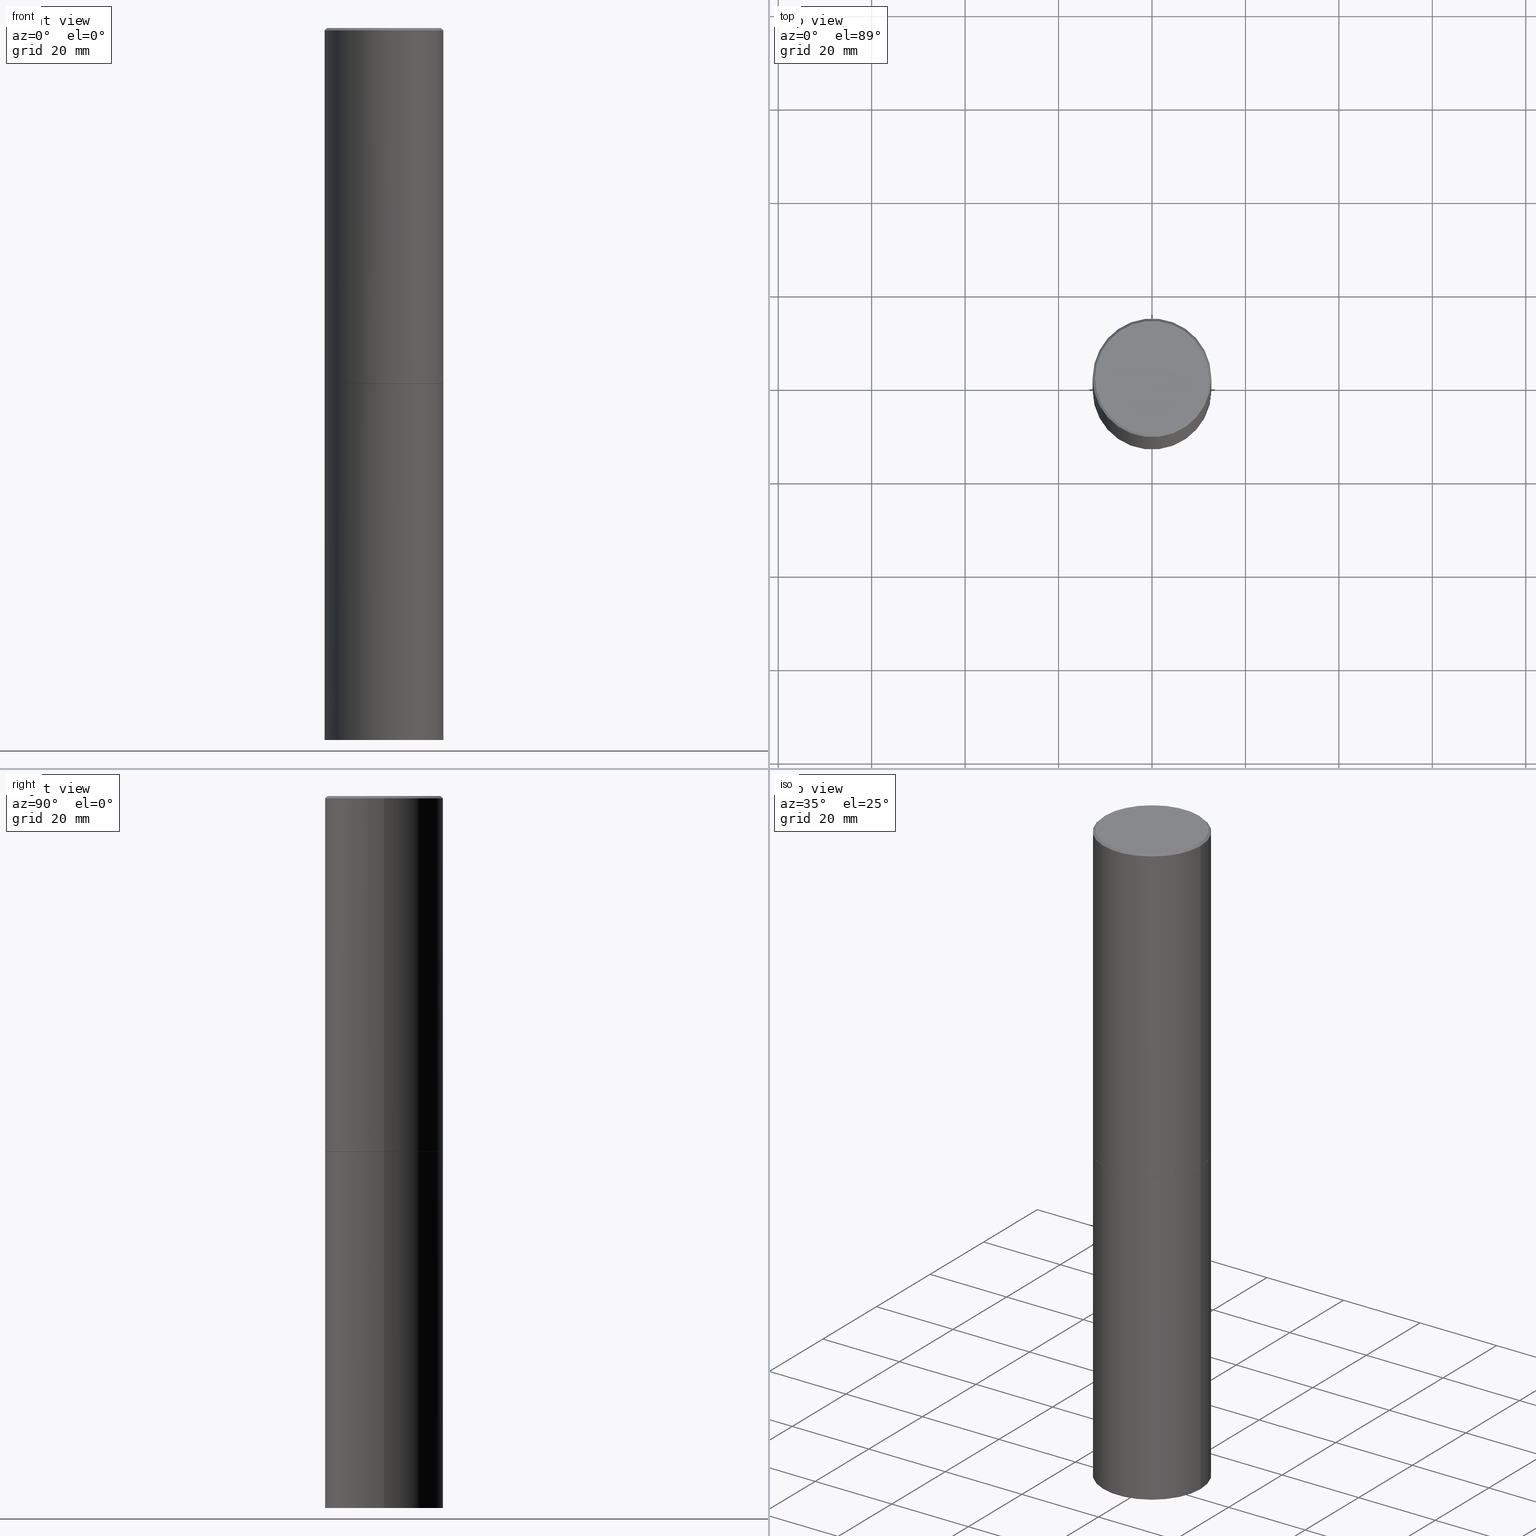
[diagram: canonical four-view strip — front | top / right | iso, engineering-drawing reading convention]
A machine part, canonical four-view strip (front | top / right | iso — engineering-drawing reading convention). The complete STEP part file that produces these views, byte-faithful:
ISO-10303-21;
HEADER;
FILE_DESCRIPTION (( 'STEP AP203' ),
    '1' );
FILE_NAME ('37697.STEP',
    '2024-02-27T22:48:44',
    ( '' ),
    ( '' ),
    'SwSTEP 2.0',
    'SolidWorks 2023',
    '' );
FILE_SCHEMA (( 'CONFIG_CONTROL_DESIGN' ));
ENDSEC;

DATA;
#1 = DESIGN_CONTEXT ( 'detailed design', #206, 'design' ) ;
#2 = CC_DESIGN_PERSON_AND_ORGANIZATION_ASSIGNMENT ( #282, #12, ( #76 ) ) ;
#3 = ORIENTED_EDGE ( 'NONE', *, *, #358, .F. ) ;
#4 = VERTEX_POINT ( 'NONE', #69 ) ;
#5 = ORIENTED_EDGE ( 'NONE', *, *, #90, .T. ) ;
#6 = AXIS2_PLACEMENT_3D ( 'NONE', #21, #345, #122 ) ;
#7 = VERTEX_POINT ( 'NONE', #151 ) ;
#8 = CC_DESIGN_DATE_AND_TIME_ASSIGNMENT ( #18, #131, ( #296 ) ) ;
#9 = VERTEX_POINT ( 'NONE', #183 ) ;
#10 = PLANE ( 'NONE',  #231 ) ;
#11 = DIRECTION ( 'NONE',  ( 2.438088387897960049E-29, -3.491481338843145188E-15, -1.000000000000000000 ) ) ;
#12 = PERSON_AND_ORGANIZATION_ROLE ( 'design_owner' ) ;
#13 = SHAPE_DEFINITION_REPRESENTATION ( #325, #197 ) ;
#14 = FACE_OUTER_BOUND ( 'NONE', #248, .T. ) ;
#15 = ORIENTED_EDGE ( 'NONE', *, *, #211, .T. ) ;
#16 = APPROVAL_STATUS ( 'not_yet_approved' ) ;
#17 = ORIENTED_EDGE ( 'NONE', *, *, #358, .T. ) ;
#18 = DATE_AND_TIME ( #284, #333 ) ;
#19 = CARTESIAN_POINT ( 'NONE',  ( 1.467281283711081958E-28, -2.094888803305887271E-14, -6.000000000000000888 ) ) ;
#20 = VECTOR ( 'NONE', #255, 39.37007874015748143 ) ;
#21 = CARTESIAN_POINT ( 'NONE',  ( 7.336406418555409790E-29, -1.047444401652943635E-14, -3.000000000000000444 ) ) ;
#22 = EDGE_CURVE ( 'NONE', #9, #297, #30, .T. ) ;
#23 = MANIFOLD_SOLID_BREP ( 'Body-Move/Copy2[1]', #87 ) ;
#24 = CIRCLE ( 'NONE', #271, 0.4999999999999996114 ) ;
#25 = EDGE_CURVE ( 'NONE', #100, #238, #352, .T. ) ;
#26 = ORIENTED_EDGE ( 'NONE', *, *, #22, .T. ) ;
#27 = DIRECTION ( 'NONE',  ( 2.445468806185136597E-29, -3.491481338843145583E-15, -1.000000000000000000 ) ) ;
#28 = FACE_OUTER_BOUND ( 'NONE', #221, .T. ) ;
#29 = ORIENTED_EDGE ( 'NONE', *, *, #194, .T. ) ;
#30 = CIRCLE ( 'NONE', #134, 0.4799999999999995937 ) ;
#31 = LOCAL_TIME ( 17, 48, 44.00000000000000000, #256 ) ;
#32 = ORIENTED_EDGE ( 'NONE', *, *, #59, .F. ) ;
#33 = ORIENTED_EDGE ( 'NONE', *, *, #262, .F. ) ;
#34 = PLANE ( 'NONE',  #61 ) ;
#35 = ADVANCED_FACE ( 'NONE', ( #155 ), #316, .T. ) ;
#36 = LINE ( 'NONE', #267, #20 ) ;
#37 = CIRCLE ( 'NONE', #54, 0.5000000000000000000 ) ;
#38 = FACE_OUTER_BOUND ( 'NONE', #187, .T. ) ;
#39 = PRODUCT_DEFINITION ( 'UNKNOWN', '', #348, #1 ) ;
#40 = DIRECTION ( 'NONE',  ( -2.445468806185136597E-29, 3.491481338843145583E-15, 1.000000000000000000 ) ) ;
#41 = DIRECTION ( 'NONE',  ( -2.445468806185136597E-29, 3.491481338843145583E-15, 1.000000000000000000 ) ) ;
#42 = ORIENTED_EDGE ( 'NONE', *, *, #326, .F. ) ;
#43 = APPROVAL_ROLE ( '' ) ;
#44 = PERSON_AND_ORGANIZATION_ROLE ( 'classification_officer' ) ;
#45 = PRODUCT_RELATED_PRODUCT_CATEGORY ( 'detail', '', ( #76 ) ) ;
#46 = CARTESIAN_POINT ( 'NONE',  ( 0.4989999999999999991, -1.395894239269488369E-14, -3.000000000000000444 ) ) ;
#47 = EDGE_CURVE ( 'NONE', #4, #294, #239, .T. ) ;
#48 = VECTOR ( 'NONE', #343, 39.37007874015748143 ) ;
#49 = CARTESIAN_POINT ( 'NONE',  ( 0.5000000000000000000, -3.491481338843133355E-15, 2.438088387897967896E-29 ) ) ;
#50 = DATE_AND_TIME ( #314, #167 ) ;
#51 = SECURITY_CLASSIFICATION_LEVEL ( 'unclassified' ) ;
#52 = CARTESIAN_POINT ( 'NONE',  ( 0.000000000000000000, 0.000000000000000000, 0.000000000000000000 ) ) ;
#53 = AXIS2_PLACEMENT_3D ( 'NONE', #253, #27, #344 ) ;
#54 = AXIS2_PLACEMENT_3D ( 'NONE', #88, #317, #287 ) ;
#55 = PERSON_AND_ORGANIZATION ( #92, #223 ) ;
#56 = CARTESIAN_POINT ( 'NONE',  ( -0.4989999999999999991, -6.923537310738314819E-15, -3.000000000000000444 ) ) ;
#57 = FACE_OUTER_BOUND ( 'NONE', #141, .T. ) ;
#58 = EDGE_CURVE ( 'NONE', #265, #238, #114, .T. ) ;
#59 = EDGE_CURVE ( 'NONE', #172, #265, #36, .T. ) ;
#60 = ORIENTED_EDGE ( 'NONE', *, *, #63, .T. ) ;
#61 = AXIS2_PLACEMENT_3D ( 'NONE', #288, #144, #110 ) ;
#62 = EDGE_LOOP ( 'NONE', ( #95, #26 ) ) ;
#63 = EDGE_CURVE ( 'NONE', #294, #124, #83, .T. ) ;
#64 = ORIENTED_EDGE ( 'NONE', *, *, #127, .T. ) ;
#65 = CC_DESIGN_APPROVAL ( #308, ( #39 ) ) ;
#66 =( NAMED_UNIT ( * ) PLANE_ANGLE_UNIT ( ) SI_UNIT ( $, .RADIAN. ) );
#67 = PLANE ( 'NONE',  #108 ) ;
#68 = CALENDAR_DATE ( 2024, 27, 2 ) ;
#69 = CARTESIAN_POINT ( 'NONE',  ( 0.5000000000000000000, -2.444036937190200606E-14, -6.000000000000000888 ) ) ;
#70 = EDGE_LOOP ( 'NONE', ( #175, #241, #117, #237 ) ) ;
#71 = DIRECTION ( 'NONE',  ( -2.445468806185136597E-29, 3.491481338843145583E-15, 1.000000000000000000 ) ) ;
#72 = CIRCLE ( 'NONE', #222, 0.5000000000000000000 ) ;
#73 = DIRECTION ( 'NONE',  ( 1.000000000000000000, -6.982962677686266711E-15, 4.876176775795935793E-29 ) ) ;
#74 = AXIS2_PLACEMENT_3D ( 'NONE', #188, #40, #99 ) ;
#75 = APPROVAL_PERSON_ORGANIZATION ( #331, #308, #357 ) ;
#76 = PRODUCT ( '37697', '37697', '', ( #278 ) ) ;
#77 =( LENGTH_UNIT ( ) NAMED_UNIT ( * ) SI_UNIT ( $, .METRE. ) );
#78 = PERSON_AND_ORGANIZATION ( #92, #223 ) ;
#79 = CC_DESIGN_PERSON_AND_ORGANIZATION_ASSIGNMENT ( #163, #44, ( #296 ) ) ;
#80 = DIRECTION ( 'NONE',  ( -0.7071067811865452413, 2.468850131082233000E-15, -0.7071067811865497932 ) ) ;
#81 = APPROVAL_DATE_TIME ( #86, #308 ) ;
#82 = APPROVAL_PERSON_ORGANIZATION ( #153, #145, #43 ) ;
#83 = LINE ( 'NONE', #341, #48 ) ;
#84 = DIRECTION ( 'NONE',  ( -2.445468806185136597E-29, 3.491481338843145583E-15, 1.000000000000000000 ) ) ;
#85 = CARTESIAN_POINT ( 'NONE',  ( 0.000000000000000000, 0.000000000000000000, 0.000000000000000000 ) ) ;
#86 = DATE_AND_TIME ( #257, #31 ) ;
#87 = CLOSED_SHELL ( 'NONE', ( #251, #289, #340, #260 ) ) ;
#88 = CARTESIAN_POINT ( 'NONE',  ( 7.333960949749226429E-29, -1.047095253519059492E-14, -2.999000000000000554 ) ) ;
#89 = CARTESIAN_POINT ( 'NONE',  ( -3.131554243005659264E-46, 4.471029511141341874E-32, 1.280553747030123384E-17 ) ) ;
#90 = EDGE_CURVE ( 'NONE', #320, #7, #24, .T. ) ;
#91 = DIRECTION ( 'NONE',  ( 1.000000000000000000, -6.982962677686266711E-15, 0.000000000000000000 ) ) ;
#92 = PERSON ( 'UNSPECIFIED', 'UNSPECIFIED', 'UNSPECIFIED', ('UNSPECIFIED'), ('UNSPECIFIED'), ('UNSPECIFIED') ) ;
#93 = DIRECTION ( 'NONE',  ( 2.445468806185136597E-29, -3.491481338843145583E-15, -1.000000000000000000 ) ) ;
#94 = ADVANCED_FACE ( 'NONE', ( #363 ), #34, .F. ) ;
#95 = ORIENTED_EDGE ( 'NONE', *, *, #228, .T. ) ;
#96 = DIRECTION ( 'NONE',  ( 1.000000000000000000, -6.982962677686265133E-15, 0.000000000000000000 ) ) ;
#97 = CONICAL_SURFACE ( 'NONE', #53, 0.4999999999999996114, 0.7853981633974450594 ) ;
#98 = ORIENTED_EDGE ( 'NONE', *, *, #136, .T. ) ;
#99 = DIRECTION ( 'NONE',  ( 1.000000000000000000, -6.982962677686262766E-15, 0.000000000000000000 ) ) ;
#100 = VERTEX_POINT ( 'NONE', #56 ) ;
#101 = COORDINATED_UNIVERSAL_TIME_OFFSET ( 5, 0, .BEHIND. ) ;
#102 = DIRECTION ( 'NONE',  ( -2.445468806185136597E-29, 3.491481338843145583E-15, 1.000000000000000000 ) ) ;
#103 = DIRECTION ( 'NONE',  ( 0.7071067811865452413, -7.319954787623248157E-15, -0.7071067811865497932 ) ) ;
#104 = AXIS2_PLACEMENT_3D ( 'NONE', #360, #84, #157 ) ;
#105 = ORIENTED_EDGE ( 'NONE', *, *, #364, .T. ) ;
#106 = CARTESIAN_POINT ( 'NONE',  ( 0.000000000000000000, 0.000000000000000000, 0.000000000000000000 ) ) ;
#107 = CARTESIAN_POINT ( 'NONE',  ( 0.5000000000000000000, -1.396243387403372828E-14, -2.999000000000000554 ) ) ;
#108 = AXIS2_PLACEMENT_3D ( 'NONE', #276, #208, #111 ) ;
#109 = PERSON_AND_ORGANIZATION_ROLE ( 'design_supplier' ) ;
#110 = DIRECTION ( 'NONE',  ( 1.000000000000000000, -6.982962677686265922E-15, 4.876176775795935793E-29 ) ) ;
#111 = DIRECTION ( 'NONE',  ( -1.000000000000000000, 6.982962677686265922E-15, -4.876176775795935793E-29 ) ) ;
#112 = APPROVAL ( #192, 'UNSPECIFIED' ) ;
#113 = ORIENTED_EDGE ( 'NONE', *, *, #25, .T. ) ;
#114 = CIRCLE ( 'NONE', #179, 0.5000000000000000000 ) ;
#115 = CARTESIAN_POINT ( 'NONE',  ( -0.4999999999999997780, 3.552713678800499352E-15, -2.459467545127452050E-29 ) ) ;
#116 = EDGE_LOOP ( 'NONE', ( #275, #105, #15, #3 ) ) ;
#117 = ORIENTED_EDGE ( 'NONE', *, *, #59, .T. ) ;
#118 = DIRECTION ( 'NONE',  ( -1.000000000000000000, 6.982962677686265922E-15, -4.876176775795935793E-29 ) ) ;
#119 = VECTOR ( 'NONE', #103, 39.37007874015748143 ) ;
#120 = EDGE_LOOP ( 'NONE', ( #266, #270 ) ) ;
#121 = CYLINDRICAL_SURFACE ( 'NONE', #359, 0.4999999999999997780 ) ;
#122 = DIRECTION ( 'NONE',  ( 1.000000000000000000, -6.982962677686266711E-15, 0.000000000000000000 ) ) ;
#123 = CARTESIAN_POINT ( 'NONE',  ( 7.336406418555409790E-29, -1.047444401652943635E-14, -3.000000000000000444 ) ) ;
#124 = VERTEX_POINT ( 'NONE', #170 ) ;
#125 = ORIENTED_EDGE ( 'NONE', *, *, #90, .F. ) ;
#126 = CARTESIAN_POINT ( 'NONE',  ( 0.5000000000000000000, -1.396592535537257129E-14, -3.000000000000000444 ) ) ;
#127 = EDGE_CURVE ( 'NONE', #238, #7, #292, .T. ) ;
#128 = CARTESIAN_POINT ( 'NONE',  ( -3.131554243005659264E-46, 4.471029511141341874E-32, 1.280553747030123384E-17 ) ) ;
#129 = CC_DESIGN_SECURITY_CLASSIFICATION ( #296, ( #348 ) ) ;
#130 = DIRECTION ( 'NONE',  ( 0.000000000000000000, 0.000000000000000000, 1.000000000000000000 ) ) ;
#131 = DATE_TIME_ROLE ( 'classification_date' ) ;
#132 = EDGE_CURVE ( 'NONE', #300, #124, #254, .T. ) ;
#133 = LINE ( 'NONE', #139, #119 ) ;
#134 = AXIS2_PLACEMENT_3D ( 'NONE', #128, #71, #189 ) ;
#135 = FACE_OUTER_BOUND ( 'NONE', #116, .T. ) ;
#136 = EDGE_CURVE ( 'NONE', #9, #320, #133, .T. ) ;
#137 = DIRECTION ( 'NONE',  ( 1.000000000000000000, -6.982962677686266711E-15, 0.000000000000000000 ) ) ;
#138 = PERSON_AND_ORGANIZATION_ROLE ( 'creator' ) ;
#139 = CARTESIAN_POINT ( 'NONE',  ( 0.4999999999999996114, -3.500078625662626318E-15, -0.02000000000000010797 ) ) ;
#140 = CC_DESIGN_PERSON_AND_ORGANIZATION_ASSIGNMENT ( #361, #109, ( #348 ) ) ;
#141 = EDGE_LOOP ( 'NONE', ( #235, #60, #207, #146 ) ) ;
#142 = ORIENTED_EDGE ( 'NONE', *, *, #58, .T. ) ;
#143 = CONICAL_SURFACE ( 'NONE', #196, 0.4999999999999996114, 0.7853981633974450594 ) ;
#144 = DIRECTION ( 'NONE',  ( -2.438088387897960049E-29, 3.491481338843145188E-15, 1.000000000000000000 ) ) ;
#145 = APPROVAL ( #355, 'UNSPECIFIED' ) ;
#146 = ORIENTED_EDGE ( 'NONE', *, *, #194, .F. ) ;
#147 = CARTESIAN_POINT ( 'NONE',  ( 0.4999999999999996114, -3.500078625662626318E-15, -0.02000000000000010797 ) ) ;
#148 = AXIS2_PLACEMENT_3D ( 'NONE', #89, #318, #203 ) ;
#149 = FACE_OUTER_BOUND ( 'NONE', #62, .T. ) ;
#150 = MANIFOLD_SOLID_BREP ( 'Body-Move/Copy2[2]', #301 ) ;
#151 = CARTESIAN_POINT ( 'NONE',  ( -0.4999999999999996114, 3.421651712066267296E-15, -0.02000000000000010797 ) ) ;
#152 = FACE_OUTER_BOUND ( 'NONE', #322, .T. ) ;
#153 = PERSON_AND_ORGANIZATION ( #92, #223 ) ;
#154 = AXIS2_PLACEMENT_3D ( 'NONE', #216, #299, #313 ) ;
#155 = FACE_OUTER_BOUND ( 'NONE', #70, .T. ) ;
#156 = CARTESIAN_POINT ( 'NONE',  ( 3.491481338843279295E-15, 0.4999999999999790168, -6.000000000000002665 ) ) ;
#157 = DIRECTION ( 'NONE',  ( 1.000000000000000000, -6.982962677686265133E-15, 0.000000000000000000 ) ) ;
#158 = DIRECTION ( 'NONE',  ( 1.000000000000000000, -6.982962677686265133E-15, 0.000000000000000000 ) ) ;
#159 = ADVANCED_FACE ( 'NONE', ( #135 ), #232, .T. ) ;
#160 = LINE ( 'NONE', #227, #161 ) ;
#161 = VECTOR ( 'NONE', #80, 39.37007874015748143 ) ;
#162 = FACE_OUTER_BOUND ( 'NONE', #243, .T. ) ;
#163 = PERSON_AND_ORGANIZATION ( #92, #223 ) ;
#164 = DIRECTION ( 'NONE',  ( -2.445468806185136597E-29, 3.491481338843145583E-15, 1.000000000000000000 ) ) ;
#165 = LINE ( 'NONE', #337, #365 ) ;
#166 = AXIS2_PLACEMENT_3D ( 'NONE', #307, #41, #158 ) ;
#167 = LOCAL_TIME ( 17, 48, 44.00000000000000000, #230 ) ;
#168 = DIRECTION ( 'NONE',  ( -2.445468806185136597E-29, 3.491481338843145583E-15, 1.000000000000000000 ) ) ;
#169 = PERSON_AND_ORGANIZATION_ROLE ( 'creator' ) ;
#170 = CARTESIAN_POINT ( 'NONE',  ( -0.5000000000000000000, -1.215895234599365439E-14, -3.000000000000000444 ) ) ;
#171 = ORIENTED_EDGE ( 'NONE', *, *, #136, .F. ) ;
#172 = VERTEX_POINT ( 'NONE', #46 ) ;
#173 = AXIS2_PLACEMENT_3D ( 'NONE', #156, #279, #178 ) ;
#174 = APPROVAL_PERSON_ORGANIZATION ( #78, #112, #309 ) ;
#175 = ORIENTED_EDGE ( 'NONE', *, *, #25, .F. ) ;
#176 = FACE_OUTER_BOUND ( 'NONE', #120, .T. ) ;
#177 = ORIENTED_EDGE ( 'NONE', *, *, #285, .T. ) ;
#178 = DIRECTION ( 'NONE',  ( -1.000000000000000000, 6.982962677686265922E-15, -4.876176775795935793E-29 ) ) ;
#179 = AXIS2_PLACEMENT_3D ( 'NONE', #229, #182, #209 ) ;
#180 = CYLINDRICAL_SURFACE ( 'NONE', #336, 0.5000000000000000000 ) ;
#181 = EDGE_CURVE ( 'NONE', #297, #7, #160, .T. ) ;
#182 = DIRECTION ( 'NONE',  ( -2.445468806185136597E-29, 3.491481338843145583E-15, 1.000000000000000000 ) ) ;
#183 = CARTESIAN_POINT ( 'NONE',  ( 0.4799999999999995937, -3.396558832296479338E-15, 1.280553747032483033E-17 ) ) ;
#184 = DIMENSIONAL_EXPONENTS ( 1.000000000000000000, 0.000000000000000000, 0.000000000000000000, 0.000000000000000000, 0.000000000000000000, 0.000000000000000000, 0.000000000000000000 ) ;
#185 = APPROVAL_DATE_TIME ( #362, #112 ) ;
#186 = CARTESIAN_POINT ( 'NONE',  ( -0.4989999999999999991, -6.928835765086536432E-15, -3.000000000000000444 ) ) ;
#187 = EDGE_LOOP ( 'NONE', ( #269, #177, #29, #42 ) ) ;
#188 = CARTESIAN_POINT ( 'NONE',  ( 1.467281283711081958E-28, -2.094888803305887271E-14, -6.000000000000000888 ) ) ;
#189 = DIRECTION ( 'NONE',  ( 1.000000000000000000, -6.982962677686266711E-15, 4.876036955247133327E-29 ) ) ;
#190 = CC_DESIGN_APPROVAL ( #145, ( #348 ) ) ;
#191 =( NAMED_UNIT ( * ) SI_UNIT ( $, .STERADIAN. ) SOLID_ANGLE_UNIT ( ) );
#192 = APPROVAL_STATUS ( 'not_yet_approved' ) ;
#193 = DIRECTION ( 'NONE',  ( 1.000000000000000000, -6.982962677686262766E-15, 0.000000000000000000 ) ) ;
#194 = EDGE_CURVE ( 'NONE', #4, #300, #195, .T. ) ;
#195 = LINE ( 'NONE', #49, #205 ) ;
#196 = AXIS2_PLACEMENT_3D ( 'NONE', #354, #93, #327 ) ;
#197 = ADVANCED_BREP_SHAPE_REPRESENTATION ( '37697', ( #23, #150, #240 ), #247 ) ;
#198 = PERSON_AND_ORGANIZATION ( #92, #223 ) ;
#199 = CALENDAR_DATE ( 2024, 27, 2 ) ;
#200 = DIRECTION ( 'NONE',  ( -2.445468806185136597E-29, 3.491481338843145583E-15, 1.000000000000000000 ) ) ;
#201 = AXIS2_PLACEMENT_3D ( 'NONE', #224, #164, #137 ) ;
#202 = UNCERTAINTY_MEASURE_WITH_UNIT (LENGTH_MEASURE( 1.000000000000000082E-05 ), #305, 'distance_accuracy_value', 'NONE');
#203 = DIRECTION ( 'NONE',  ( 1.000000000000000000, -6.982962677686266711E-15, 4.876036955247133327E-29 ) ) ;
#204 = ADVANCED_FACE ( 'NONE', ( #162 ), #236, .T. ) ;
#205 = VECTOR ( 'NONE', #233, 39.37007874015748143 ) ;
#206 = APPLICATION_CONTEXT ( 'configuration controlled 3d designs of mechanical parts and assemblies' ) ;
#207 = ORIENTED_EDGE ( 'NONE', *, *, #132, .F. ) ;
#208 = DIRECTION ( 'NONE',  ( 2.438088387897960049E-29, -3.491481338843145188E-15, -1.000000000000000000 ) ) ;
#209 = DIRECTION ( 'NONE',  ( 1.000000000000000000, -6.982962677686266711E-15, 0.000000000000000000 ) ) ;
#210 = DATE_TIME_ROLE ( 'creation_date' ) ;
#211 = EDGE_CURVE ( 'NONE', #265, #320, #165, .T. ) ;
#212 = DIRECTION ( 'NONE',  ( 1.000000000000000000, -6.982962677686266711E-15, 0.000000000000000000 ) ) ;
#213 = VECTOR ( 'NONE', #304, 39.37007874015748143 ) ;
#214 = LOCAL_TIME ( 17, 48, 44.00000000000000000, #217 ) ;
#215 = FACE_OUTER_BOUND ( 'NONE', #258, .T. ) ;
#216 = CARTESIAN_POINT ( 'NONE',  ( 7.336406418555409790E-29, -1.047444401652943635E-14, -3.000000000000000444 ) ) ;
#217 = COORDINATED_UNIVERSAL_TIME_OFFSET ( 5, 0, .BEHIND. ) ;
#218 = CARTESIAN_POINT ( 'NONE',  ( -0.4799999999999995937, 3.386736898677836436E-15, 1.280553747027767124E-17 ) ) ;
#219 = DATE_AND_TIME ( #68, #339 ) ;
#220 = ADVANCED_FACE ( 'NONE', ( #14 ), #97, .T. ) ;
#221 = EDGE_LOOP ( 'NONE', ( #142, #64, #125, #323 ) ) ;
#222 = AXIS2_PLACEMENT_3D ( 'NONE', #306, #324, #212 ) ;
#223 = ORGANIZATION ( 'UNSPECIFIED', 'UNSPECIFIED', '' ) ;
#224 = CARTESIAN_POINT ( 'NONE',  ( 4.890937612370299433E-31, -6.982962677686328587E-17, -0.02000000000000010797 ) ) ;
#225 = DIRECTION ( 'NONE',  ( 1.000000000000000000, 0.000000000000000000, 0.000000000000000000 ) ) ;
#226 = EDGE_LOOP ( 'NONE', ( #33, #249 ) ) ;
#227 = CARTESIAN_POINT ( 'NONE',  ( -0.4999999999999996114, 3.421651712066267296E-15, -0.02000000000000010797 ) ) ;
#228 = EDGE_CURVE ( 'NONE', #297, #9, #295, .T. ) ;
#229 = CARTESIAN_POINT ( 'NONE',  ( 7.333960949749226429E-29, -1.047095253519059492E-14, -2.999000000000000554 ) ) ;
#230 = COORDINATED_UNIVERSAL_TIME_OFFSET ( 5, 0, .BEHIND. ) ;
#231 = AXIS2_PLACEMENT_3D ( 'NONE', #273, #11, #118 ) ;
#232 = CYLINDRICAL_SURFACE ( 'NONE', #246, 0.4999999999999997780 ) ;
#233 = DIRECTION ( 'NONE',  ( -2.445468806185136877E-29, 3.491481338843145188E-15, 1.000000000000000000 ) ) ;
#234 = COORDINATED_UNIVERSAL_TIME_OFFSET ( 5, 0, .BEHIND. ) ;
#235 = ORIENTED_EDGE ( 'NONE', *, *, #47, .T. ) ;
#236 = CONICAL_SURFACE ( 'NONE', #104, 0.4989999999999999991, 0.7853981633975507526 ) ;
#237 = ORIENTED_EDGE ( 'NONE', *, *, #364, .F. ) ;
#238 = VERTEX_POINT ( 'NONE', #321 ) ;
#239 = CIRCLE ( 'NONE', #338, 0.5000000000000000000 ) ;
#240 = AXIS2_PLACEMENT_3D ( 'NONE', #106, #130, #225 ) ;
#241 = ORIENTED_EDGE ( 'NONE', *, *, #302, .T. ) ;
#242 = CC_DESIGN_PERSON_AND_ORGANIZATION_ASSIGNMENT ( #198, #138, ( #348 ) ) ;
#243 = EDGE_LOOP ( 'NONE', ( #330, #113, #319, #32 ) ) ;
#244 = DIRECTION ( 'NONE',  ( -2.445468806185136877E-29, 3.491481338843145188E-15, 1.000000000000000000 ) ) ;
#245 = ORIENTED_EDGE ( 'NONE', *, *, #181, .T. ) ;
#246 = AXIS2_PLACEMENT_3D ( 'NONE', #52, #311, #283 ) ;
#247 =( GEOMETRIC_REPRESENTATION_CONTEXT ( 3 ) GLOBAL_UNCERTAINTY_ASSIGNED_CONTEXT ( ( #202 ) ) GLOBAL_UNIT_ASSIGNED_CONTEXT ( ( #305, #66, #191 ) ) REPRESENTATION_CONTEXT ( 'NONE', 'WORKASPACE' ) );
#248 = EDGE_LOOP ( 'NONE', ( #171, #342, #245, #17 ) ) ;
#249 = ORIENTED_EDGE ( 'NONE', *, *, #302, .F. ) ;
#250 = CARTESIAN_POINT ( 'NONE',  ( -0.5000000000000000000, -1.215895234599365439E-14, -6.000000000000000888 ) ) ;
#251 = ADVANCED_FACE ( 'NONE', ( #57 ), #264, .T. ) ;
#252 = APPLICATION_PROTOCOL_DEFINITION ( 'international standard', 'config_control_design', 1994, #206 ) ;
#253 = CARTESIAN_POINT ( 'NONE',  ( 4.890937612370299433E-31, -6.982962677686328587E-17, -0.02000000000000010797 ) ) ;
#254 = CIRCLE ( 'NONE', #6, 0.5000000000000000000 ) ;
#255 = DIRECTION ( 'NONE',  ( 0.7071067811866199593, -2.468850131083015945E-15, 0.7071067811864750752 ) ) ;
#256 = COORDINATED_UNIVERSAL_TIME_OFFSET ( 5, 0, .BEHIND. ) ;
#257 = CALENDAR_DATE ( 2024, 27, 2 ) ;
#258 = EDGE_LOOP ( 'NONE', ( #281, #98, #5, #353 ) ) ;
#259 = APPLICATION_CONTEXT ( 'configuration controlled 3d designs of mechanical parts and assemblies' ) ;
#260 = ADVANCED_FACE ( 'NONE', ( #38 ), #180, .T. ) ;
#261 = VECTOR ( 'NONE', #244, 39.37007874015748143 ) ;
#262 = EDGE_CURVE ( 'NONE', #172, #100, #347, .T. ) ;
#263 = DIRECTION ( 'NONE',  ( -2.445468806185136597E-29, 3.491481338843145583E-15, 1.000000000000000000 ) ) ;
#264 = CYLINDRICAL_SURFACE ( 'NONE', #332, 0.5000000000000000000 ) ;
#265 = VERTEX_POINT ( 'NONE', #107 ) ;
#266 = ORIENTED_EDGE ( 'NONE', *, *, #47, .F. ) ;
#267 = CARTESIAN_POINT ( 'NONE',  ( 0.4989999999999999991, -1.395894239269488369E-14, -3.000000000000000444 ) ) ;
#268 = DIRECTION ( 'NONE',  ( 1.000000000000000000, -6.982962677686266711E-15, 4.876176775795935793E-29 ) ) ;
#269 = ORIENTED_EDGE ( 'NONE', *, *, #63, .F. ) ;
#270 = ORIENTED_EDGE ( 'NONE', *, *, #285, .F. ) ;
#271 = AXIS2_PLACEMENT_3D ( 'NONE', #298, #168, #91 ) ;
#272 = CARTESIAN_POINT ( 'NONE',  ( 0.000000000000000000, 0.000000000000000000, 0.000000000000000000 ) ) ;
#273 = CARTESIAN_POINT ( 'NONE',  ( 3.351822085289404787E-15, 0.4799999999999995937, -1.669508273909557867E-15 ) ) ;
#274 = CARTESIAN_POINT ( 'NONE',  ( 0.000000000000000000, 0.000000000000000000, 0.000000000000000000 ) ) ;
#275 = ORIENTED_EDGE ( 'NONE', *, *, #127, .F. ) ;
#276 = CARTESIAN_POINT ( 'NONE',  ( 3.491481338843206325E-15, 0.4999999999999895639, -3.000000000000001776 ) ) ;
#277 = CIRCLE ( 'NONE', #74, 0.5000000000000000000 ) ;
#278 = MECHANICAL_CONTEXT ( 'NONE', #259, 'mechanical' ) ;
#279 = DIRECTION ( 'NONE',  ( 2.438088387897960049E-29, -3.491481338843145188E-15, -1.000000000000000000 ) ) ;
#280 = DIRECTION ( 'NONE',  ( -2.445468806185136877E-29, 3.491481338843145188E-15, 1.000000000000000000 ) ) ;
#281 = ORIENTED_EDGE ( 'NONE', *, *, #22, .F. ) ;
#282 = PERSON_AND_ORGANIZATION ( #92, #223 ) ;
#283 = DIRECTION ( 'NONE',  ( 1.000000000000000000, -6.982962677686266711E-15, 4.876176775795935793E-29 ) ) ;
#284 = CALENDAR_DATE ( 2024, 27, 2 ) ;
#285 = EDGE_CURVE ( 'NONE', #294, #4, #277, .T. ) ;
#286 = CC_DESIGN_DATE_AND_TIME_ASSIGNMENT ( #50, #210, ( #39 ) ) ;
#287 = DIRECTION ( 'NONE',  ( 1.000000000000000000, -6.982962677686266711E-15, 0.000000000000000000 ) ) ;
#288 = CARTESIAN_POINT ( 'NONE',  ( 7.336406418555409790E-29, -1.047444401652943635E-14, -3.000000000000000444 ) ) ;
#289 = ADVANCED_FACE ( 'NONE', ( #176 ), #303, .T. ) ;
#290 = CIRCLE ( 'NONE', #201, 0.4999999999999996114 ) ;
#291 = CIRCLE ( 'NONE', #312, 0.4989999999999999991 ) ;
#292 = LINE ( 'NONE', #115, #261 ) ;
#293 = ADVANCED_FACE ( 'NONE', ( #149 ), #10, .F. ) ;
#294 = VERTEX_POINT ( 'NONE', #250 ) ;
#295 = CIRCLE ( 'NONE', #148, 0.4799999999999995937 ) ;
#296 = SECURITY_CLASSIFICATION ( '', '', #51 ) ;
#297 = VERTEX_POINT ( 'NONE', #218 ) ;
#298 = CARTESIAN_POINT ( 'NONE',  ( 4.890937612370299433E-31, -6.982962677686328587E-17, -0.02000000000000010797 ) ) ;
#299 = DIRECTION ( 'NONE',  ( -2.445468806185136597E-29, 3.491481338843145583E-15, 1.000000000000000000 ) ) ;
#300 = VERTEX_POINT ( 'NONE', #126 ) ;
#301 = CLOSED_SHELL ( 'NONE', ( #204, #351, #334, #220, #159, #35, #94, #293 ) ) ;
#302 = EDGE_CURVE ( 'NONE', #100, #172, #291, .T. ) ;
#303 = PLANE ( 'NONE',  #173 ) ;
#304 = DIRECTION ( 'NONE',  ( -0.7071067811866199593, 7.493145998870616062E-15, 0.7071067811864750752 ) ) ;
#305 =( CONVERSION_BASED_UNIT ( 'INCH', #356 ) LENGTH_UNIT ( ) NAMED_UNIT ( #184 ) );
#306 = CARTESIAN_POINT ( 'NONE',  ( 7.336406418555409790E-29, -1.047444401652943635E-14, -3.000000000000000444 ) ) ;
#307 = CARTESIAN_POINT ( 'NONE',  ( 7.336406418555409790E-29, -1.047444401652943635E-14, -3.000000000000000444 ) ) ;
#308 = APPROVAL ( #16, 'UNSPECIFIED' ) ;
#309 = APPROVAL_ROLE ( '' ) ;
#310 = APPLICATION_PROTOCOL_DEFINITION ( 'international standard', 'config_control_design', 1994, #259 ) ;
#311 = DIRECTION ( 'NONE',  ( -2.445468806185136597E-29, 3.491481338843145583E-15, 1.000000000000000000 ) ) ;
#312 = AXIS2_PLACEMENT_3D ( 'NONE', #123, #350, #96 ) ;
#313 = DIRECTION ( 'NONE',  ( 1.000000000000000000, -6.982962677686265133E-15, 0.000000000000000000 ) ) ;
#314 = CALENDAR_DATE ( 2024, 27, 2 ) ;
#315 = DIRECTION ( 'NONE',  ( -2.445468806185136597E-29, 3.491481338843145583E-15, 1.000000000000000000 ) ) ;
#316 = CONICAL_SURFACE ( 'NONE', #166, 0.4989999999999999991, 0.7853981633975507526 ) ;
#317 = DIRECTION ( 'NONE',  ( -2.445468806185136597E-29, 3.491481338843145583E-15, 1.000000000000000000 ) ) ;
#318 = DIRECTION ( 'NONE',  ( -2.445468806185136597E-29, 3.491481338843145583E-15, 1.000000000000000000 ) ) ;
#319 = ORIENTED_EDGE ( 'NONE', *, *, #58, .F. ) ;
#320 = VERTEX_POINT ( 'NONE', #147 ) ;
#321 = CARTESIAN_POINT ( 'NONE',  ( -0.5000000000000000000, -1.717677402183225026E-15, -2.999000000000000554 ) ) ;
#322 = EDGE_LOOP ( 'NONE', ( #349, #328 ) ) ;
#323 = ORIENTED_EDGE ( 'NONE', *, *, #211, .F. ) ;
#324 = DIRECTION ( 'NONE',  ( -2.445468806185136597E-29, 3.491481338843145583E-15, 1.000000000000000000 ) ) ;
#325 = PRODUCT_DEFINITION_SHAPE ( 'NONE', 'NONE',  #39 ) ;
#326 = EDGE_CURVE ( 'NONE', #124, #300, #72, .T. ) ;
#327 = DIRECTION ( 'NONE',  ( -1.000000000000000000, 6.982962677686266711E-15, 0.000000000000000000 ) ) ;
#328 = ORIENTED_EDGE ( 'NONE', *, *, #326, .T. ) ;
#329 = APPROVAL_DATE_TIME ( #219, #145 ) ;
#330 = ORIENTED_EDGE ( 'NONE', *, *, #262, .T. ) ;
#331 = PERSON_AND_ORGANIZATION ( #92, #223 ) ;
#332 = AXIS2_PLACEMENT_3D ( 'NONE', #85, #315, #268 ) ;
#333 = LOCAL_TIME ( 17, 48, 44.00000000000000000, #234 ) ;
#334 = ADVANCED_FACE ( 'NONE', ( #215 ), #143, .T. ) ;
#335 = DIRECTION ( 'NONE',  ( 1.000000000000000000, -6.982962677686266711E-15, 4.876176775795935793E-29 ) ) ;
#336 = AXIS2_PLACEMENT_3D ( 'NONE', #272, #263, #335 ) ;
#337 = CARTESIAN_POINT ( 'NONE',  ( 0.4999999999999997780, -3.491481338843131778E-15, 2.438088387897966775E-29 ) ) ;
#338 = AXIS2_PLACEMENT_3D ( 'NONE', #19, #200, #193 ) ;
#339 = LOCAL_TIME ( 17, 48, 44.00000000000000000, #101 ) ;
#340 = ADVANCED_FACE ( 'NONE', ( #152 ), #67, .F. ) ;
#341 = CARTESIAN_POINT ( 'NONE',  ( -0.5000000000000000000, 3.552713678800500929E-15, -2.459467545127452891E-29 ) ) ;
#342 = ORIENTED_EDGE ( 'NONE', *, *, #228, .F. ) ;
#343 = DIRECTION ( 'NONE',  ( -2.445468806185136877E-29, 3.491481338843145188E-15, 1.000000000000000000 ) ) ;
#344 = DIRECTION ( 'NONE',  ( -1.000000000000000000, 6.982962677686266711E-15, 0.000000000000000000 ) ) ;
#345 = DIRECTION ( 'NONE',  ( -2.445468806185136597E-29, 3.491481338843145583E-15, 1.000000000000000000 ) ) ;
#346 = CC_DESIGN_PERSON_AND_ORGANIZATION_ASSIGNMENT ( #55, #169, ( #39 ) ) ;
#347 = CIRCLE ( 'NONE', #154, 0.4989999999999999991 ) ;
#348 = PRODUCT_DEFINITION_FORMATION_WITH_SPECIFIED_SOURCE ( 'ANY', '', #76, .NOT_KNOWN. ) ;
#349 = ORIENTED_EDGE ( 'NONE', *, *, #132, .T. ) ;
#350 = DIRECTION ( 'NONE',  ( -2.445468806185136597E-29, 3.491481338843145583E-15, 1.000000000000000000 ) ) ;
#351 = ADVANCED_FACE ( 'NONE', ( #28 ), #121, .T. ) ;
#352 = LINE ( 'NONE', #186, #213 ) ;
#353 = ORIENTED_EDGE ( 'NONE', *, *, #181, .F. ) ;
#354 = CARTESIAN_POINT ( 'NONE',  ( 4.890937612370299433E-31, -6.982962677686328587E-17, -0.02000000000000010797 ) ) ;
#355 = APPROVAL_STATUS ( 'not_yet_approved' ) ;
#356 = LENGTH_MEASURE_WITH_UNIT ( LENGTH_MEASURE( 0.02539999999999999897 ), #77 );
#357 = APPROVAL_ROLE ( '' ) ;
#358 = EDGE_CURVE ( 'NONE', #7, #320, #290, .T. ) ;
#359 = AXIS2_PLACEMENT_3D ( 'NONE', #274, #102, #73 ) ;
#360 = CARTESIAN_POINT ( 'NONE',  ( 7.336406418555409790E-29, -1.047444401652943635E-14, -3.000000000000000444 ) ) ;
#361 = PERSON_AND_ORGANIZATION ( #92, #223 ) ;
#362 = DATE_AND_TIME ( #199, #214 ) ;
#363 = FACE_OUTER_BOUND ( 'NONE', #226, .T. ) ;
#364 = EDGE_CURVE ( 'NONE', #238, #265, #37, .T. ) ;
#365 = VECTOR ( 'NONE', #280, 39.37007874015748143 ) ;
#366 = CC_DESIGN_APPROVAL ( #112, ( #296 ) ) ;
ENDSEC;
END-ISO-10303-21;
